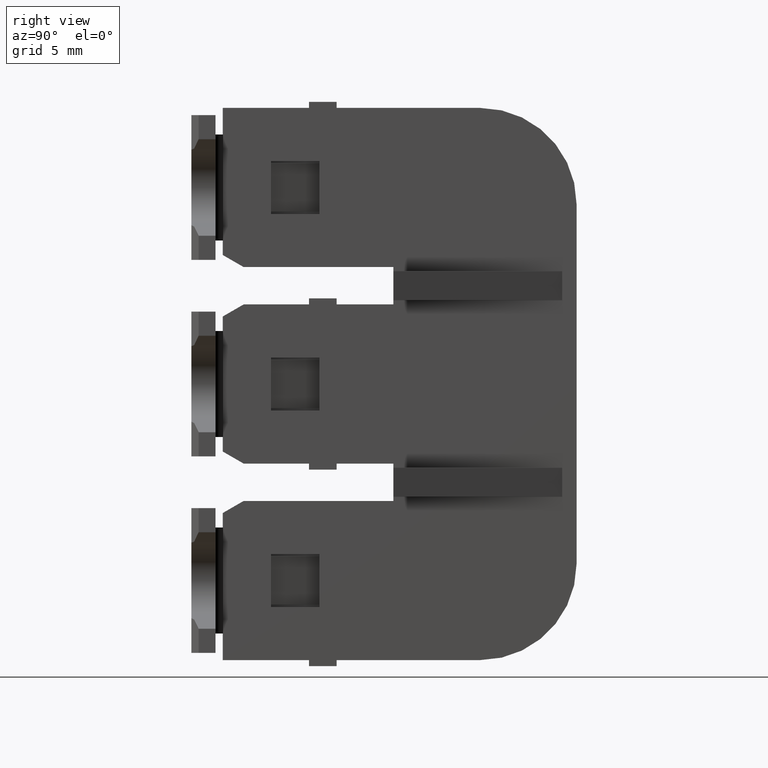
[diagram: clean part render]
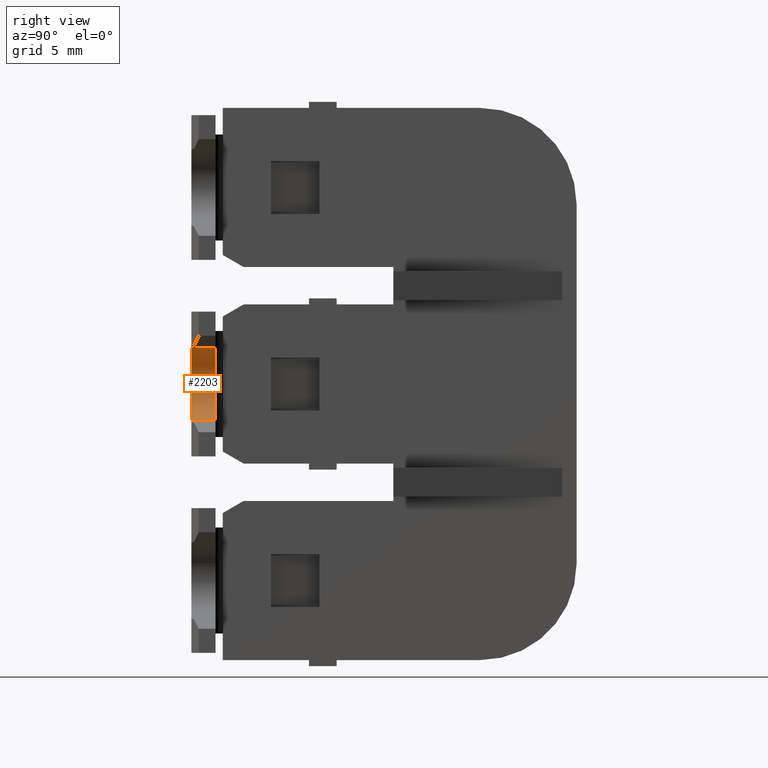
[diagram: same view with one face highlighted and labeled with its STEP entity id]
A machine part, right view. The second image highlights one B-rep face of the part: STEP entity #2203.
In plain terms, the highlighted cylindrical surface (edge-blend (fillet) strip) has radius 1.5 mm, axis along (-0, 1, 0).
Its self-contained STEP definition (entity closure, byte-faithful):
#4 = DIRECTION ( 'NONE',  ( -5.551115123125849300E-017, 1.000000000000000000, -1.887053881211024900E-016 ) ) ;
#6 = DIRECTION ( 'NONE',  ( -5.551115123125729700E-017, 1.000000000000000000, 1.887053881210179800E-016 ) ) ;
#28 = DIRECTION ( 'NONE',  ( 0.0000000000000000000, 0.0000000000000000000, -1.000000000000000000 ) ) ;
#35 = CARTESIAN_POINT ( 'NONE',  ( 1498.582277336664000, 1078.959529724810000, -4.099999998093220000 ) ) ;
#38 = LINE ( 'NONE', #40, #1194 ) ;
#40 = CARTESIAN_POINT ( 'NONE',  ( 1498.465335063177900, 1073.399745466405900, -5.595434551884079800 ) ) ;
#43 = DIRECTION ( 'NONE',  ( -5.551115123125779600E-017, 1.000000000000000000, -8.480695841261440800E-029 ) ) ;
#44 = DIRECTION ( 'NONE',  ( -5.551115123125779600E-017, 1.000000000000000000, -8.480695841261440800E-029 ) ) ;
#58 = DIRECTION ( 'NONE',  ( 0.0000000000000000000, 0.0000000000000000000, 1.000000000000000000 ) ) ;
#61 = CARTESIAN_POINT ( 'NONE',  ( 1498.582277336664000, 1079.959529724810000, -4.099999998093220000 ) ) ;
#1090 = LINE ( 'NONE', #1091, #1202 ) ;
#1091 = CARTESIAN_POINT ( 'NONE',  ( 1498.465335063177900, 1073.399745466405900, -2.604565446209199800 ) ) ;
#1169 = CIRCLE ( 'NONE', #1196, 1.500000000000000400 ) ;
#1194 = VECTOR ( 'NONE', #6, 1000.000000000000000 ) ;
#1196 = AXIS2_PLACEMENT_3D ( 'NONE', #35, #43, #28 ) ;
#1202 = VECTOR ( 'NONE', #4, 1000.000000000000000 ) ;
#1218 = CIRCLE ( 'NONE', #1219, 1.500000000000000000 ) ;
#1219 = AXIS2_PLACEMENT_3D ( 'NONE', #61, #44, #58 ) ;
#1511 = AXIS2_PLACEMENT_3D ( 'NONE', #3287, #3307, #3301 ) ;
#1882 = EDGE_CURVE ( 'NONE', #2905, #2834, #1090, .T. ) ;
#1885 = EDGE_CURVE ( 'NONE', #2820, #2905, #1169, .T. ) ;
#1895 = EDGE_CURVE ( 'NONE', #2820, #2900, #38, .T. ) ;
#1897 = EDGE_CURVE ( 'NONE', #2900, #2834, #1218, .T. ) ;
#2203 = ADVANCED_FACE ( 'NONE', ( #3300 ), #3281, .F. ) ;
#2661 = ORIENTED_EDGE ( 'NONE', *, *, #1895, .T. ) ;
#2670 = ORIENTED_EDGE ( 'NONE', *, *, #1897, .T. ) ;
#2682 = ORIENTED_EDGE ( 'NONE', *, *, #1882, .F. ) ;
#2696 = ORIENTED_EDGE ( 'NONE', *, *, #1885, .F. ) ;
#2820 = VERTEX_POINT ( 'NONE', #4938 ) ;
#2834 = VERTEX_POINT ( 'NONE', #4946 ) ;
#2900 = VERTEX_POINT ( 'NONE', #4303 ) ;
#2905 = VERTEX_POINT ( 'NONE', #4347 ) ;
#3078 = EDGE_LOOP ( 'NONE', ( #2670, #2682, #2696, #2661 ) ) ;
#3281 = CYLINDRICAL_SURFACE ( 'NONE', #1511, 1.500000000000000000 ) ;
#3287 = CARTESIAN_POINT ( 'NONE',  ( 1498.582277336664000, 1073.399745466405900, -4.099999998093220000 ) ) ;
#3300 = FACE_OUTER_BOUND ( 'NONE', #3078, .T. ) ;
#3301 = DIRECTION ( 'NONE',  ( 0.0000000000000000000, 0.0000000000000000000, 1.000000000000000000 ) ) ;
#3307 = DIRECTION ( 'NONE',  ( -5.551115123125739600E-017, 1.000000000000000000, 1.445602896646489900E-016 ) ) ;
#4303 = CARTESIAN_POINT ( 'NONE',  ( 1498.465335063177900, 1079.959529724810000, -5.595434551884079800 ) ) ;
#4347 = CARTESIAN_POINT ( 'NONE',  ( 1498.465335063177900, 1078.959529724810000, -2.604565446209199800 ) ) ;
#4938 = CARTESIAN_POINT ( 'NONE',  ( 1498.465335063177900, 1078.959529724810000, -5.595434551884079800 ) ) ;
#4946 = CARTESIAN_POINT ( 'NONE',  ( 1498.465335063177900, 1079.959529724810000, -2.604565446209199800 ) ) ;